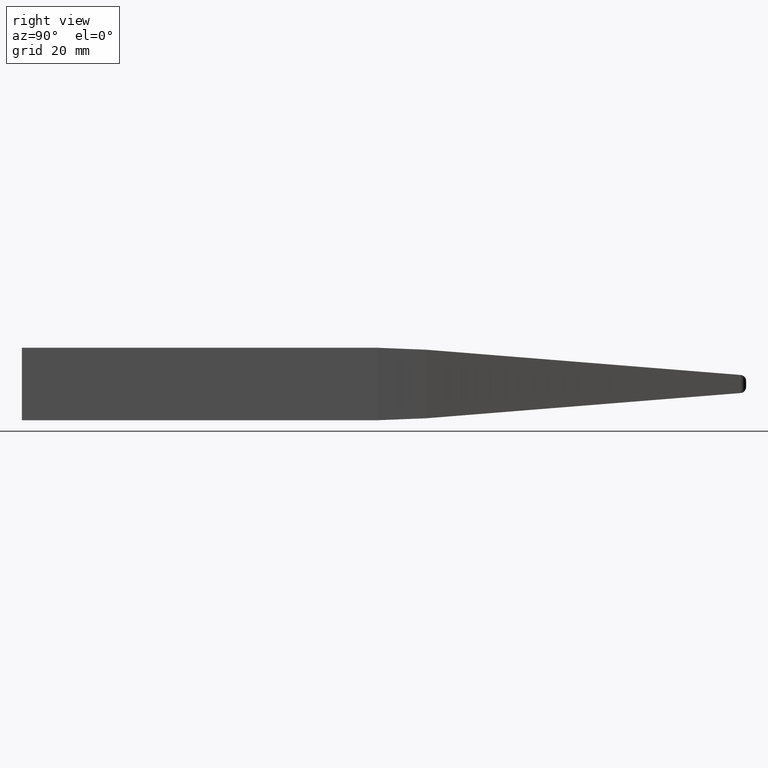
[diagram: clean part render]
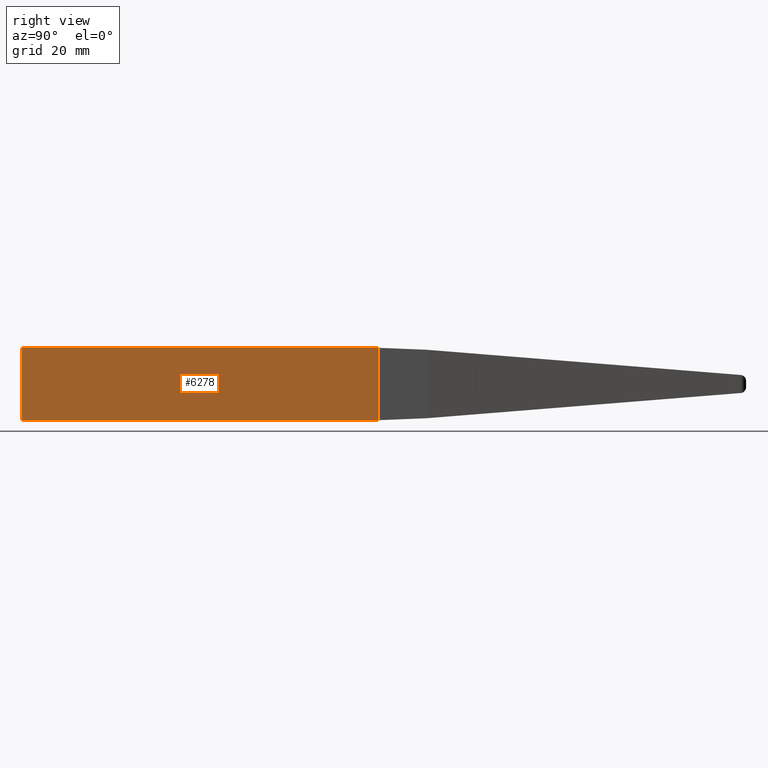
[diagram: same view with one face highlighted and labeled with its STEP entity id]
A machine part, right view. The second image highlights one B-rep face of the part: STEP entity #6278.
In plain terms, the highlighted planar face has unit normal (-1, 0, 0).
Its self-contained STEP definition (entity closure, byte-faithful):
#251 = CARTESIAN_POINT ( 'NONE',  ( 6.000000000000000888, 120.0000000000000000, 6.000000000000000000 ) ) ;
#390 = CARTESIAN_POINT ( 'NONE',  ( 6.000000000000000888, 0.000000000000000000, 6.000000000000000000 ) ) ;
#723 = AXIS2_PLACEMENT_3D ( 'NONE', #2281, #10931, #1560 ) ;
#1331 = DIRECTION ( 'NONE',  ( -0.000000000000000000, -0.000000000000000000, -1.000000000000000000 ) ) ;
#1560 = DIRECTION ( 'NONE',  ( 0.000000000000000000, 0.000000000000000000, 1.000000000000000000 ) ) ;
#2070 = DIRECTION ( 'NONE',  ( -0.000000000000000000, -1.000000000000000000, -0.000000000000000000 ) ) ;
#2281 = CARTESIAN_POINT ( 'NONE',  ( 6.000000000000000888, 120.0000000000000000, -6.000000000000000000 ) ) ;
#2331 = FACE_OUTER_BOUND ( 'NONE', #5302, .T. ) ;
#2523 = ORIENTED_EDGE ( 'NONE', *, *, #9699, .T. ) ;
#2783 = CARTESIAN_POINT ( 'NONE',  ( 6.000000000000000888, 58.99328473552503027, 6.000000000000000000 ) ) ;
#2915 = EDGE_CURVE ( 'NONE', #4116, #5219, #4887, .T. ) ;
#3311 = EDGE_CURVE ( 'NONE', #4116, #9737, #9563, .T. ) ;
#3849 = CARTESIAN_POINT ( 'NONE',  ( 6.000000000000000888, 0.000000000000000000, -6.000000000000000000 ) ) ;
#3932 = VECTOR ( 'NONE', #5093, 1000.000000000000000 ) ;
#4116 = VERTEX_POINT ( 'NONE', #7628 ) ;
#4117 = CARTESIAN_POINT ( 'NONE',  ( 6.000000000000000888, 58.99328473552503027, -6.000000000000000000 ) ) ;
#4581 = VECTOR ( 'NONE', #1331, 1000.000000000000000 ) ;
#4887 = LINE ( 'NONE', #5154, #8231 ) ;
#5093 = DIRECTION ( 'NONE',  ( 0.000000000000000000, 0.000000000000000000, 1.000000000000000000 ) ) ;
#5109 = ORIENTED_EDGE ( 'NONE', *, *, #3311, .T. ) ;
#5154 = CARTESIAN_POINT ( 'NONE',  ( 6.000000000000000888, 120.0000000000000000, -6.000000000000000000 ) ) ;
#5219 = VERTEX_POINT ( 'NONE', #9197 ) ;
#5302 = EDGE_LOOP ( 'NONE', ( #9693, #5109, #2523, #7367 ) ) ;
#5595 = EDGE_CURVE ( 'NONE', #10713, #5219, #10087, .T. ) ;
#6278 = ADVANCED_FACE ( 'NONE', ( #2331 ), #9836, .F. ) ;
#6534 = VECTOR ( 'NONE', #2070, 1000.000000000000000 ) ;
#7367 = ORIENTED_EDGE ( 'NONE', *, *, #5595, .T. ) ;
#7628 = CARTESIAN_POINT ( 'NONE',  ( 6.000000000000000888, 58.99328473552503027, -6.000000000000000000 ) ) ;
#8231 = VECTOR ( 'NONE', #9330, 1000.000000000000000 ) ;
#8840 = LINE ( 'NONE', #251, #6534 ) ;
#9197 = CARTESIAN_POINT ( 'NONE',  ( 6.000000000000000888, 0.000000000000000000, -6.000000000000000000 ) ) ;
#9330 = DIRECTION ( 'NONE',  ( -0.000000000000000000, -1.000000000000000000, -0.000000000000000000 ) ) ;
#9563 = LINE ( 'NONE', #4117, #3932 ) ;
#9693 = ORIENTED_EDGE ( 'NONE', *, *, #2915, .F. ) ;
#9699 = EDGE_CURVE ( 'NONE', #9737, #10713, #8840, .T. ) ;
#9737 = VERTEX_POINT ( 'NONE', #2783 ) ;
#9836 = PLANE ( 'NONE',  #723 ) ;
#10087 = LINE ( 'NONE', #3849, #4581 ) ;
#10713 = VERTEX_POINT ( 'NONE', #390 ) ;
#10931 = DIRECTION ( 'NONE',  ( -1.000000000000000000, 0.000000000000000000, 0.000000000000000000 ) ) ;